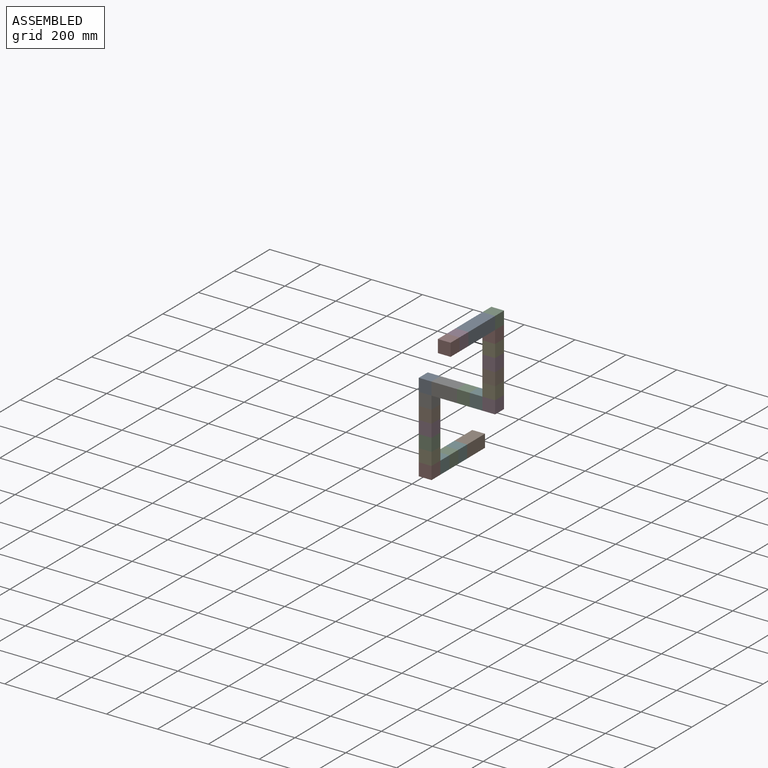
[diagram: assembled view]
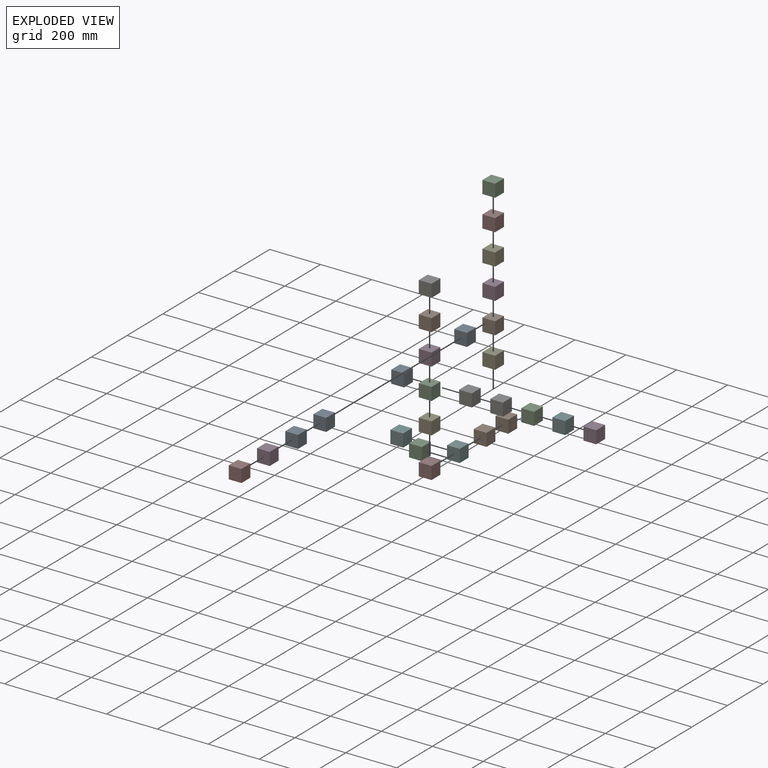
[diagram: exploded view]
GUIDED TOUR — MATED ASSEMBLY (Onshape document 9bb635d8e0742098e5cdf894, AutoMate assembly 9bb635d8e0742098e5cdf894_4bd229e26b546ad1a448d9b1_0f3c6ab229fbf7bb88413557_default)

This assembly has 28 components, labeled P0..P27 below (a component is one placed occurrence of a part; the same part can appear more than once), held together by 26 mates. A mate is a constraint between two components; its type names the relative motion it leaves free:
  FASTENED — locks the two components together rigidly (no relative motion).
Axis/direction vectors are unit vectors and 'through' points are millimeter coordinates, both in the assembly's world frame.

MATES
  1. FASTENED "Fastened 8": P14 <-> P8, direction (-1.000, 0.000, 0.000) through (-148.50, 260.82, 5.08) mm
  2. FASTENED "Fastened 6": P18 <-> P15, direction (0.000, 0.000, -1.000) through (76.50, 260.82, 280.08) mm
  3. FASTENED "Fastened 10": P1 <-> P19, direction (0.000, 0.000, 1.000) through (76.50, 260.82, 130.08) mm
  4. FASTENED "Fastened 1": P22 <-> P25, direction (0.000, 0.000, -1.000) through (-173.50, 260.82, -69.92) mm
  5. FASTENED "Fastened 6": P0 <-> P16, direction (0.000, 1.000, 0.000) through (76.50, 135.82, 305.08) mm
  6. FASTENED "Fastened 10": P24 <-> P16, direction (0.000, -1.000, 0.000) through (76.50, 185.82, 305.08) mm
  7. FASTENED "Fastened 6": P12 <-> P1, direction (0.000, 0.000, 1.000) through (76.50, 260.82, 80.08) mm
  8. FASTENED "Fastened 13": P0 <-> P3, direction (0.000, -1.000, 0.000) through (76.50, 85.82, 305.08) mm
  9. FASTENED "Fastened 13": P20 <-> P15, direction (0.000, 0.000, 1.000) through (76.50, 260.82, 230.08) mm
  10. FASTENED "Fastened 6": P6 <-> P14, direction (-1.000, 0.000, 0.000) through (-98.50, 260.82, 5.08) mm
  11. FASTENED "Fastened 14": P12 <-> P27, direction (0.000, 0.000, -1.000) through (76.50, 260.82, 30.08) mm
  12. FASTENED "Fastened 5": P7 <-> P4, direction (0.000, 0.000, 1.000) through (-173.50, 260.82, -269.92) mm
  13. FASTENED "Fastened 6": P23 <-> P3, direction (0.000, 1.000, 0.000) through (76.50, 35.82, 305.08) mm
  14. FASTENED "Fastened 12": P5 <-> P7, direction (0.000, -1.000, 0.000) through (-173.50, 285.82, -294.92) mm
  15. FASTENED "Fastened 2": P21 <-> P17, direction (0.000, 1.000, 0.000) through (-173.50, 435.82, -294.92) mm
  16. FASTENED "Fastened 6": P26 <-> P13, direction (1.000, 0.000, 0.000) through (1.50, 260.82, 5.08) mm
  17. FASTENED "Fastened 4": P8 <-> P22, direction (0.000, 0.000, -1.000) through (-173.50, 260.82, -19.92) mm
  18. FASTENED "Fastened 11": P17 <-> P9, direction (0.000, 1.000, 0.000) through (-173.50, 485.82, -294.92) mm
  19. FASTENED "Fastened 1": P2 <-> P4, direction (0.000, 0.000, -1.000) through (-173.50, 260.82, -219.92) mm
  20. FASTENED "Fastened 1": P5 <-> P10, direction (0.000, 1.000, 0.000) through (-173.50, 335.82, -294.92) mm
  21. FASTENED "Fastened 2": P11 <-> P2, direction (0.000, 0.000, -1.000) through (-173.50, 260.82, -169.92) mm
  22. FASTENED "Fastened 3": P10 <-> P21, direction (0.000, 1.000, 0.000) through (-173.50, 385.82, -294.92) mm
  23. FASTENED "Fastened 7": P6 <-> P26, direction (1.000, 0.000, 0.000) through (-48.50, 260.82, 5.08) mm
  24. FASTENED "Fastened 3": P25 <-> P11, direction (0.000, 0.000, -1.000) through (-173.50, 260.82, -119.92) mm
  25. FASTENED "Fastened 6": P20 <-> P19, direction (0.000, 0.000, -1.000) through (76.50, 260.82, 180.08) mm
  26. FASTENED "Fastened 9": P13 <-> P27, direction (1.000, 0.000, 0.000) through (51.50, 260.82, 5.08) mm

ASSEMBLY ORDER
  1. P7 — the base component [order verified]
  2. P5 [order verified]
  3. P4 [order verified]
  4. P2 [order verified]
  5. P11 [order verified]
  6. P25 [order verified]
  7. P22 [order verified]
  8. P8 [order verified]
  9. P14 [order verified]
  10. P6 [order verified]
  11. P26 [order verified]
  12. P13 [order verified]
  13. P27 [order verified]
  14. P12 [order verified]
  15. P1 [order verified]
  16. P19 [order verified]
  17. P20 [order verified]
  18. P15 [order verified]
  19. P18 [order verified]
  20. P10 [order verified]
  21. P21 [order verified]
  22. P17 [order verified]
  23. P9 [order verified]
  24. P24 [order verified]
  25. P16 [order verified]
  26. P0 [order verified]
  27. P3 [order verified]
  28. P23 [order verified]
Order-tag legend:
  [order verified] — this step's position reverses a verified removal order: the component was checked to insert without passing through the ones already placed.

Of the 28 components, 28 carry the full construction recipe — the FeatureScript program that regenerates the part's solid from scratch; the rest are supplied as boundary geometry only.
Because this assembly has more than 12 components, the tour below covers the 12 most significant ones individually (every recipe-attached component first, then the largest by part volume), in assembly order; the remaining 16 are summarized together in a grouped section at the end.
Each toured component is shown spotlighted twice — in the assembled view, then in the exploded view, where a leader line traces a displaced component back to its assembled socket (saturated green if recipe-attached, orange if geometry-only; every other component desaturated gray) — followed by its recipe or geometry summary and the mates that hold it.
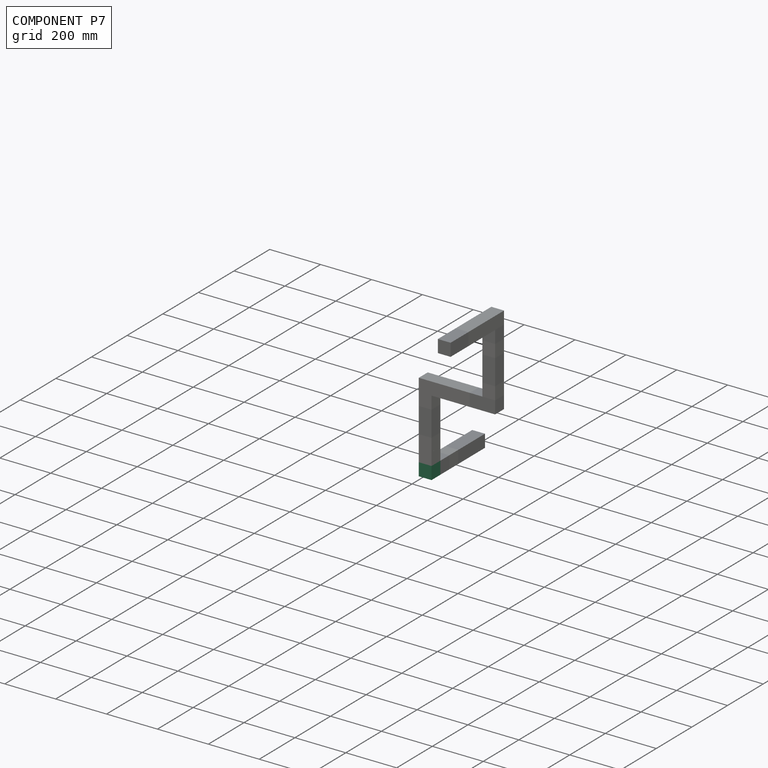
[diagram: component P7 — assembled]
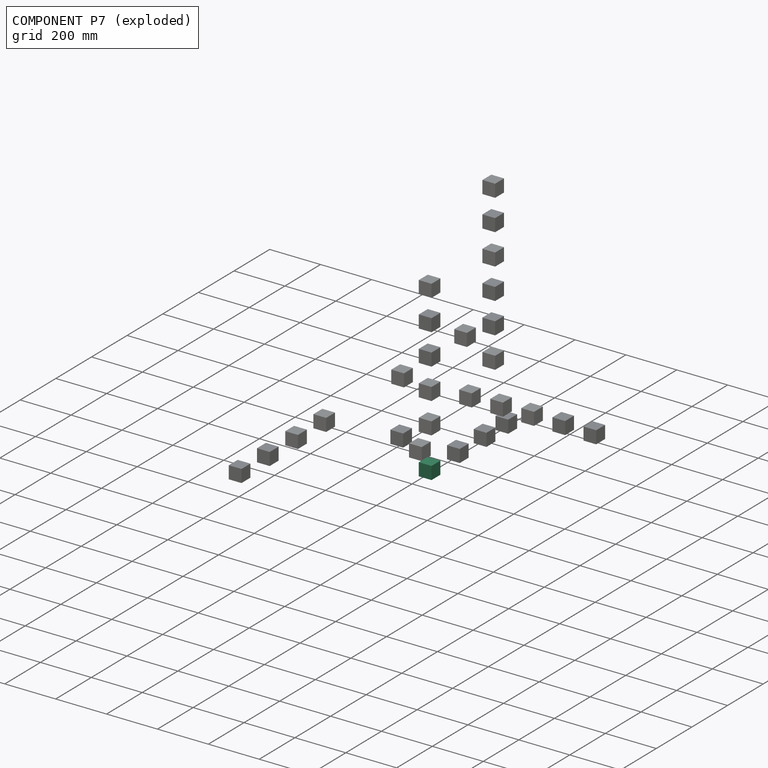
[diagram: component P7 — exploded]
COMPONENT P7 — same part as P0 (CADFS 00232254); its construction recipe is shown at P0.
Held by: FASTENED mate "Fastened 5" to P4; FASTENED mate "Fastened 12" to P5.
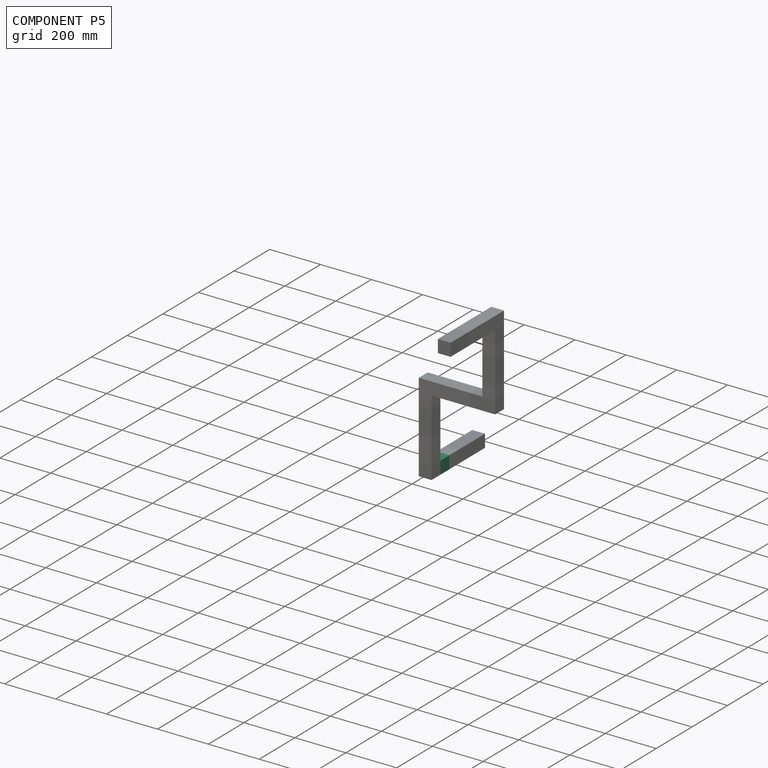
[diagram: component P5 — assembled]
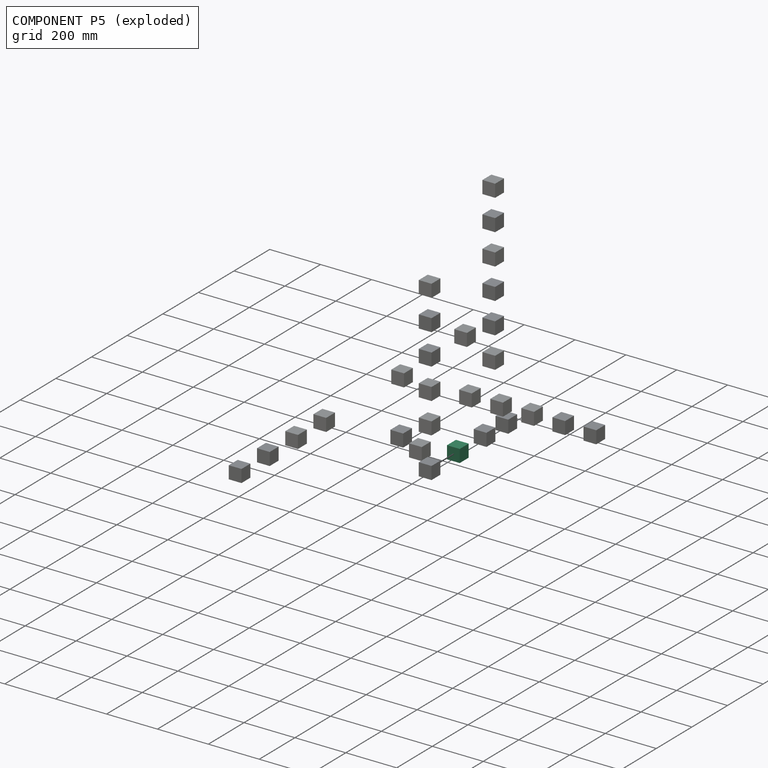
[diagram: component P5 — exploded]
COMPONENT P5 — same part as P0 (CADFS 00232254); its construction recipe is shown at P0.
Held by: FASTENED mate "Fastened 12" to P7; FASTENED mate "Fastened 1" to P10.
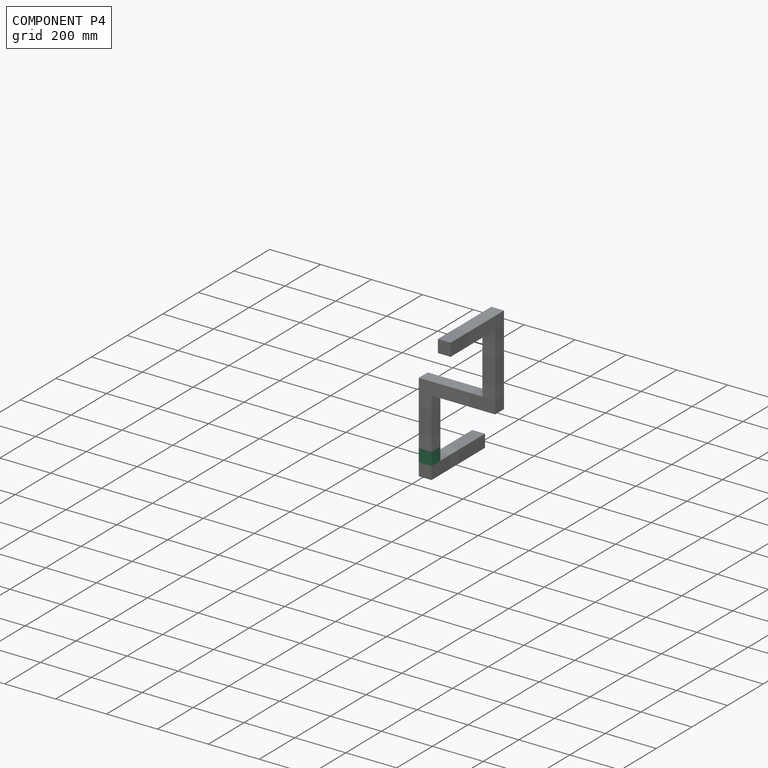
[diagram: component P4 — assembled]
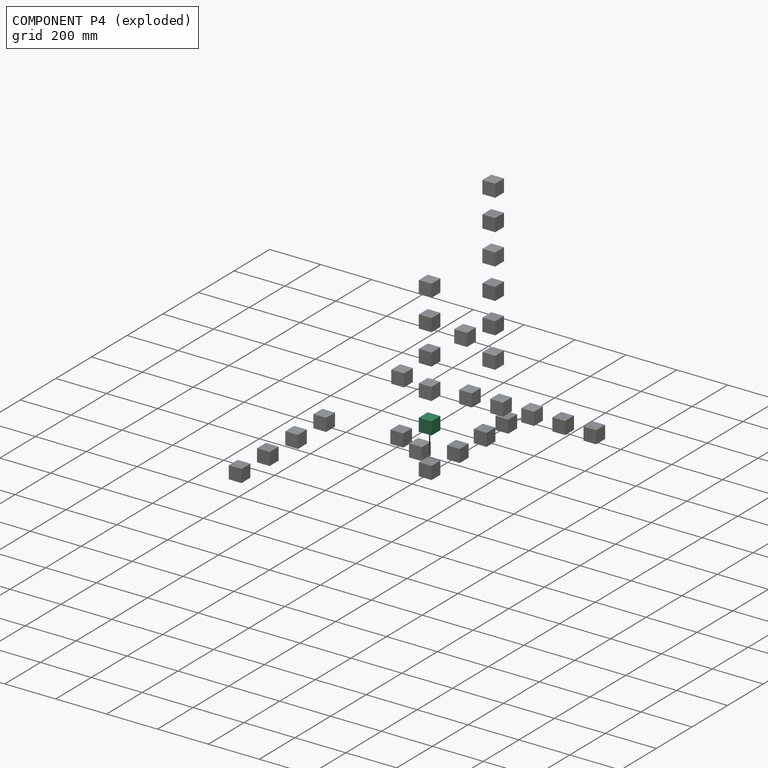
[diagram: component P4 — exploded]
COMPONENT P4 — same part as P0 (CADFS 00232254); its construction recipe is shown at P0.
Held by: FASTENED mate "Fastened 5" to P7; FASTENED mate "Fastened 1" to P2.
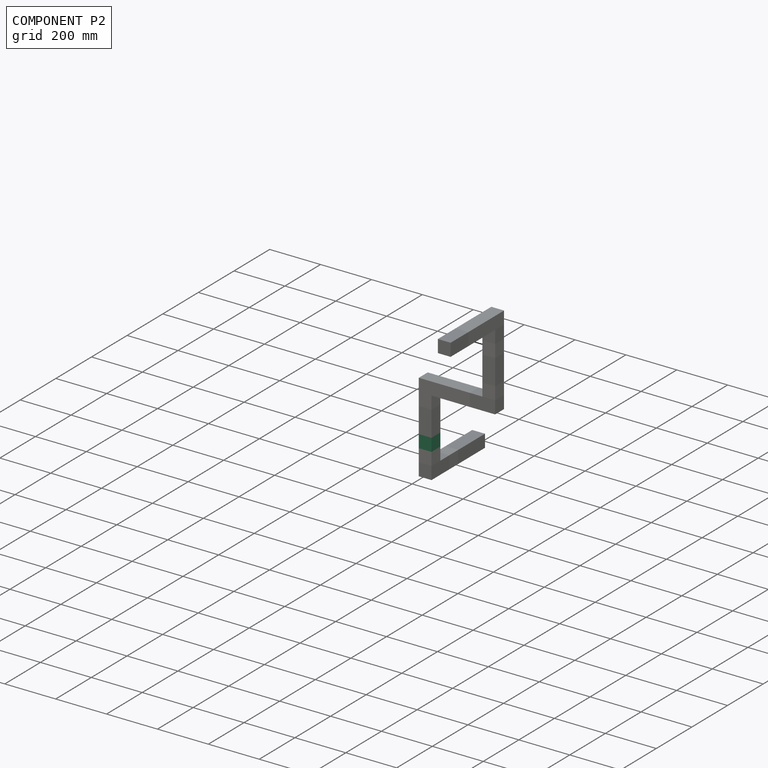
[diagram: component P2 — assembled]
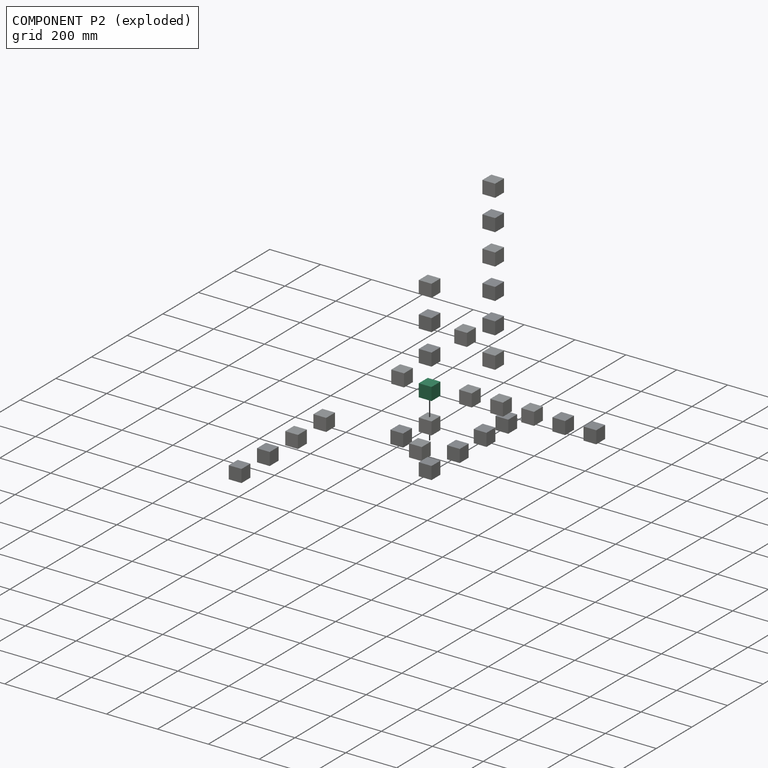
[diagram: component P2 — exploded]
COMPONENT P2 — same part as P0 (CADFS 00232254); its construction recipe is shown at P0.
Held by: FASTENED mate "Fastened 1" to P4; FASTENED mate "Fastened 2" to P11.
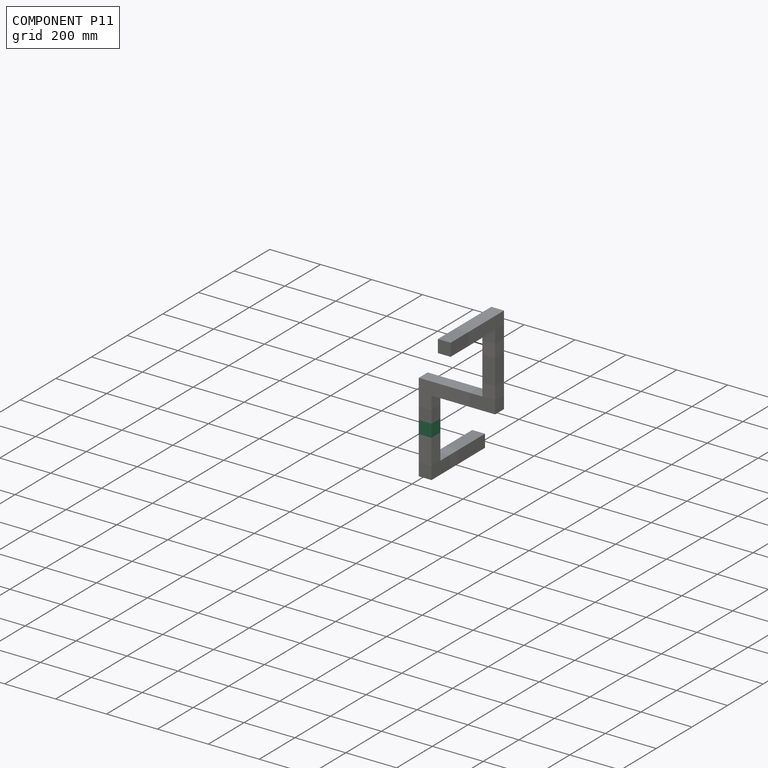
[diagram: component P11 — assembled]
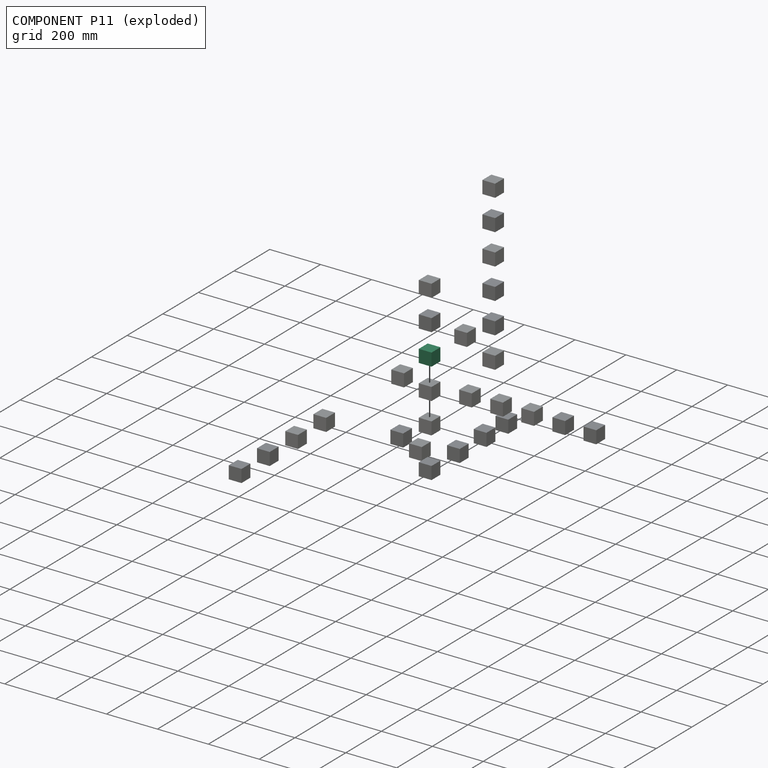
[diagram: component P11 — exploded]
COMPONENT P11 — same part as P0 (CADFS 00232254); its construction recipe is shown at P0.
Held by: FASTENED mate "Fastened 2" to P2; FASTENED mate "Fastened 3" to P25.
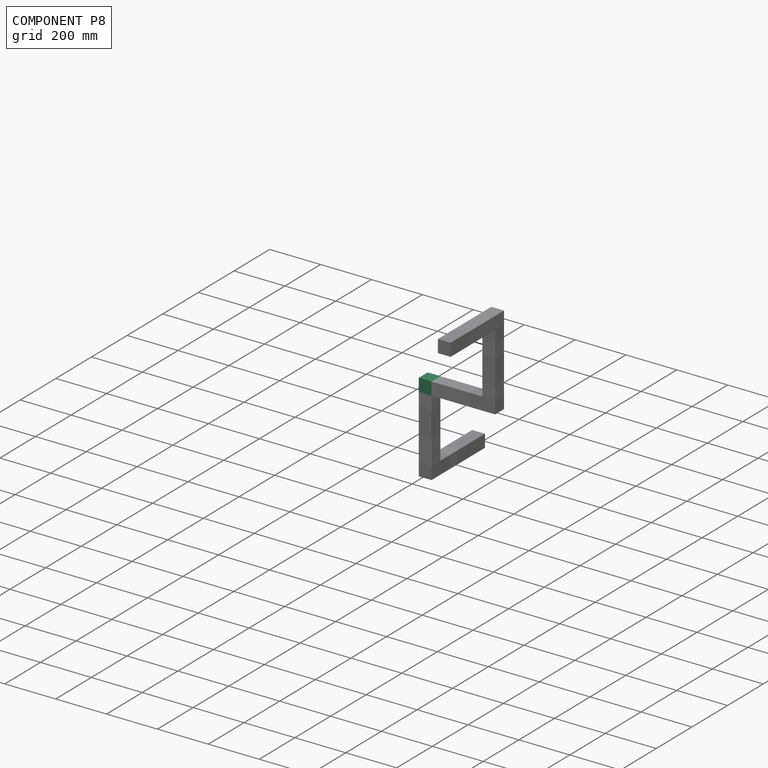
[diagram: component P8 — assembled]
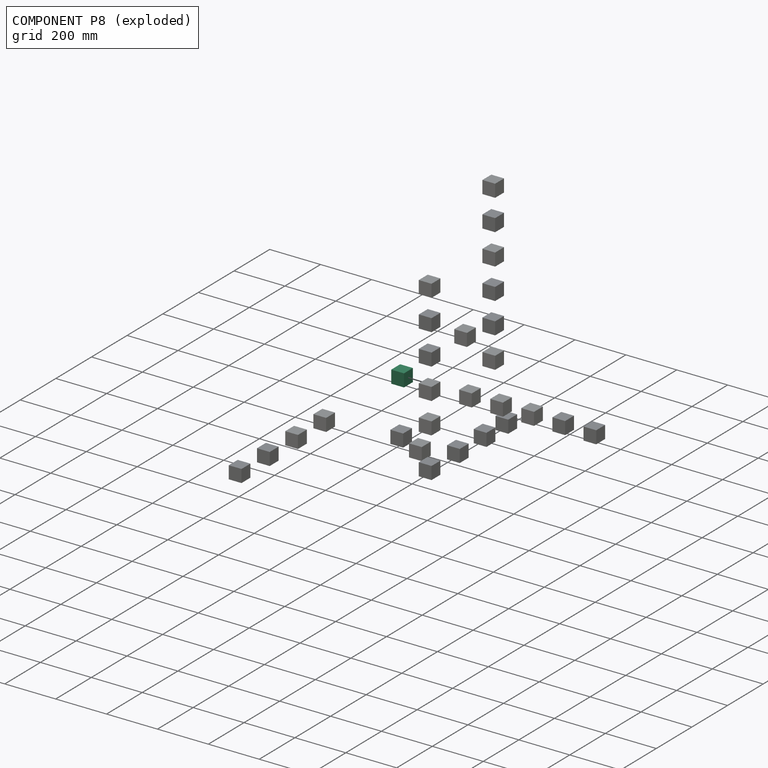
[diagram: component P8 — exploded]
COMPONENT P8 — same part as P0 (CADFS 00232254); its construction recipe is shown at P0.
Held by: FASTENED mate "Fastened 8" to P14; FASTENED mate "Fastened 4" to P22.
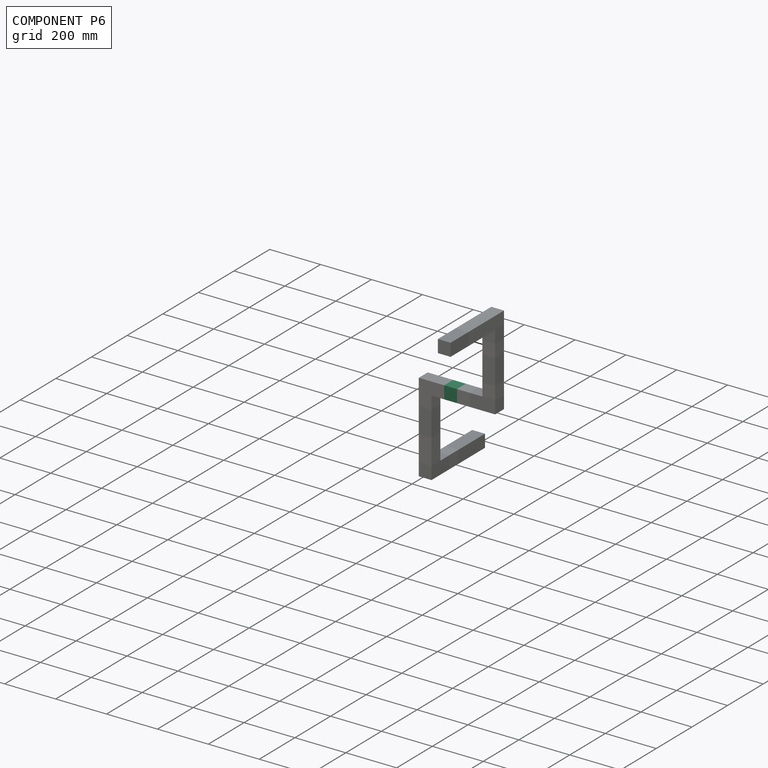
[diagram: component P6 — assembled]
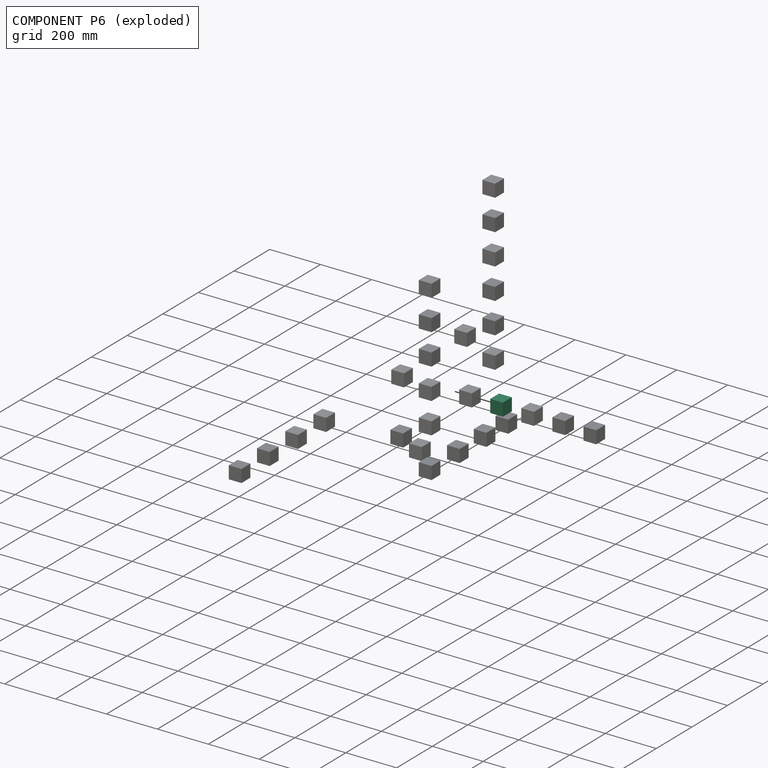
[diagram: component P6 — exploded]
COMPONENT P6 — same part as P0 (CADFS 00232254); its construction recipe is shown at P0.
Held by: FASTENED mate "Fastened 6" to P14; FASTENED mate "Fastened 7" to P26.
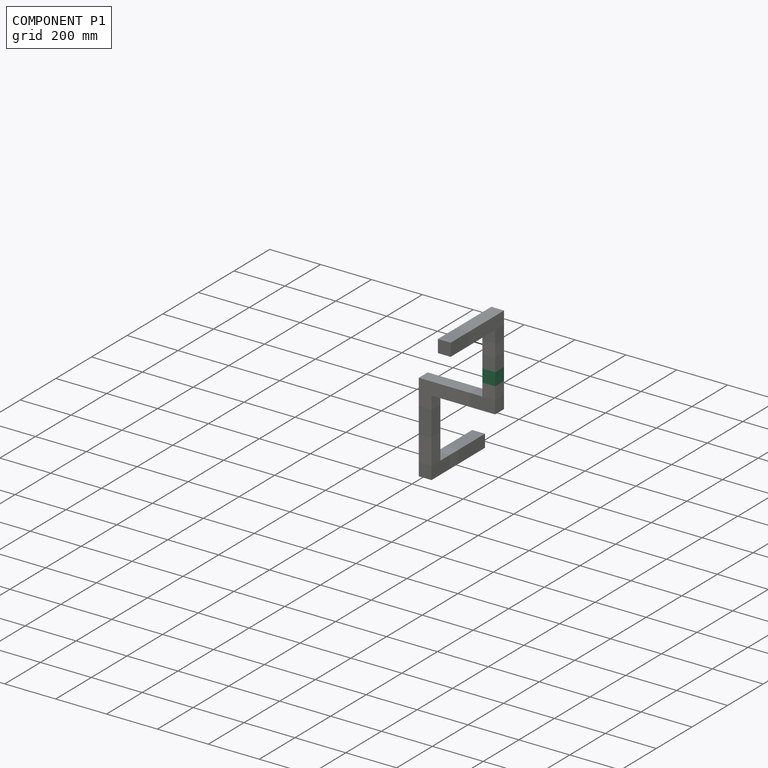
[diagram: component P1 — assembled]
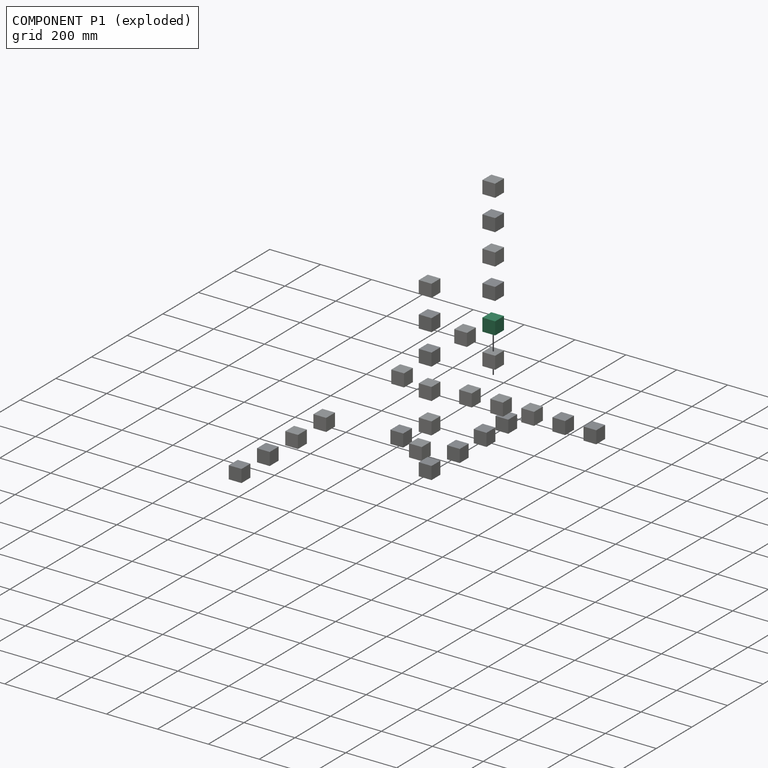
[diagram: component P1 — exploded]
COMPONENT P1 — same part as P0 (CADFS 00232254); its construction recipe is shown at P0.
Held by: FASTENED mate "Fastened 10" to P19; FASTENED mate "Fastened 6" to P12.
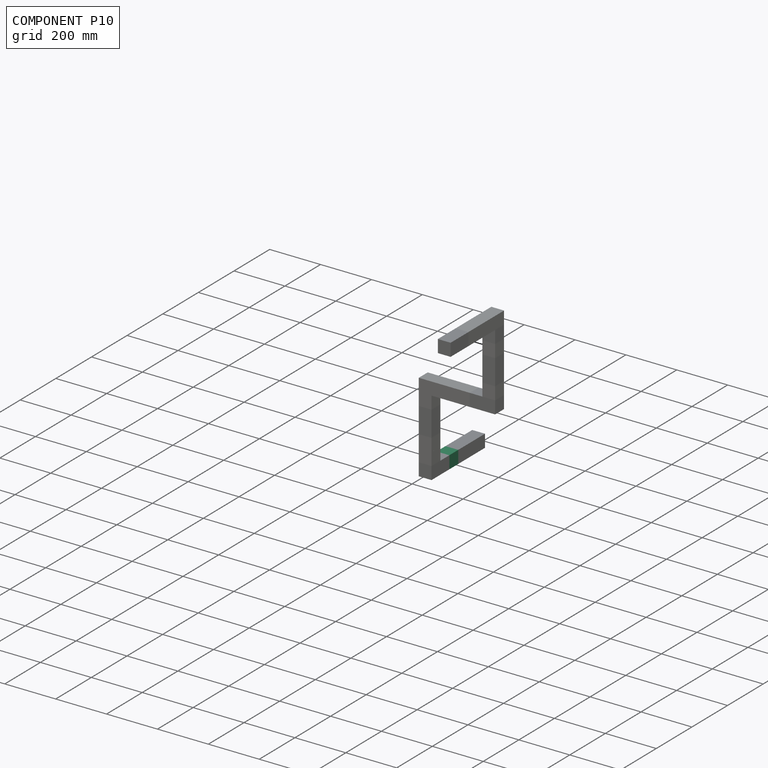
[diagram: component P10 — assembled]
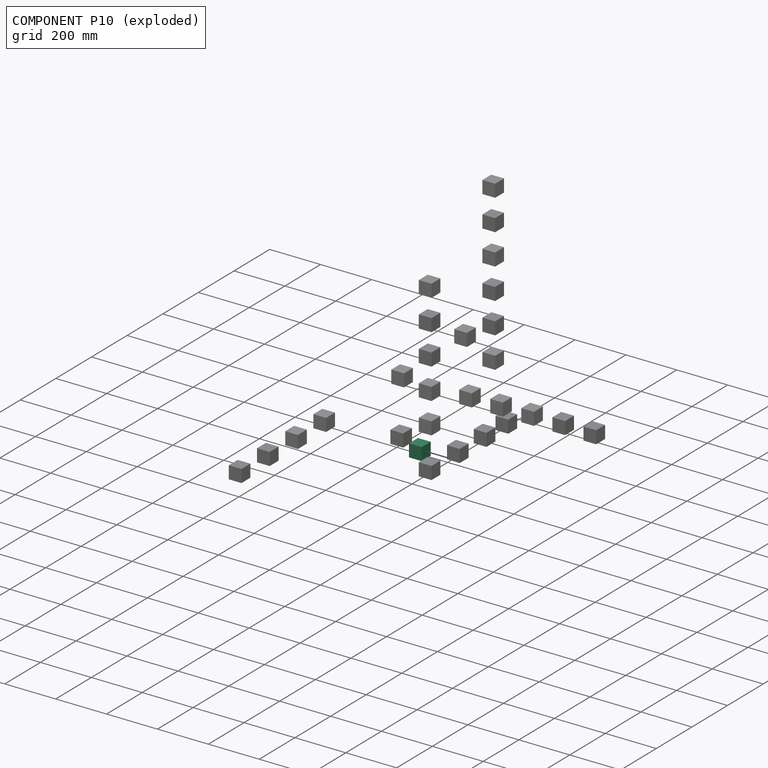
[diagram: component P10 — exploded]
COMPONENT P10 — same part as P0 (CADFS 00232254); its construction recipe is shown at P0.
Held by: FASTENED mate "Fastened 1" to P5; FASTENED mate "Fastened 3" to P21.
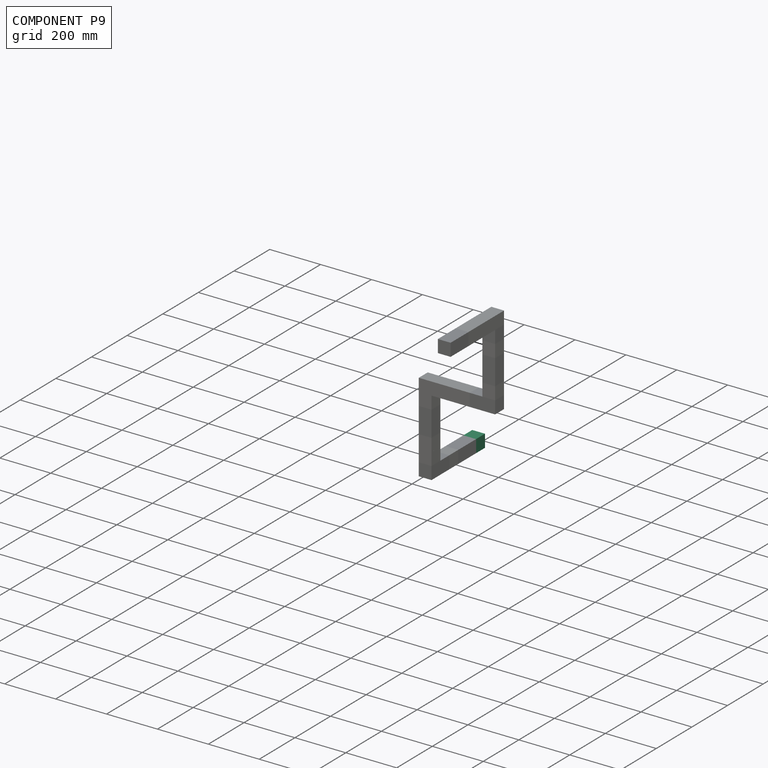
[diagram: component P9 — assembled]
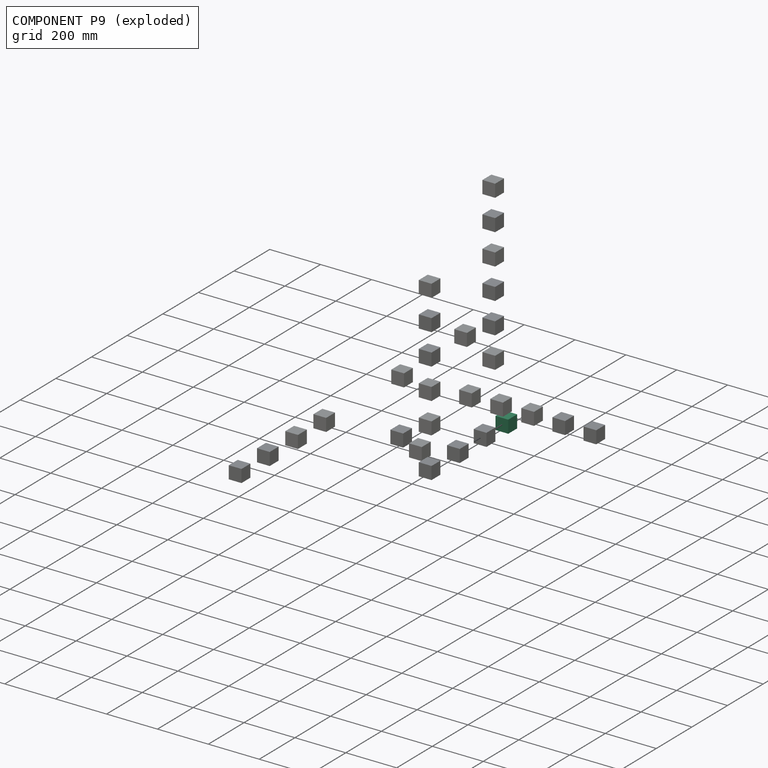
[diagram: component P9 — exploded]
COMPONENT P9 — same part as P0 (CADFS 00232254); its construction recipe is shown at P0.
Held by: FASTENED mate "Fastened 11" to P17.
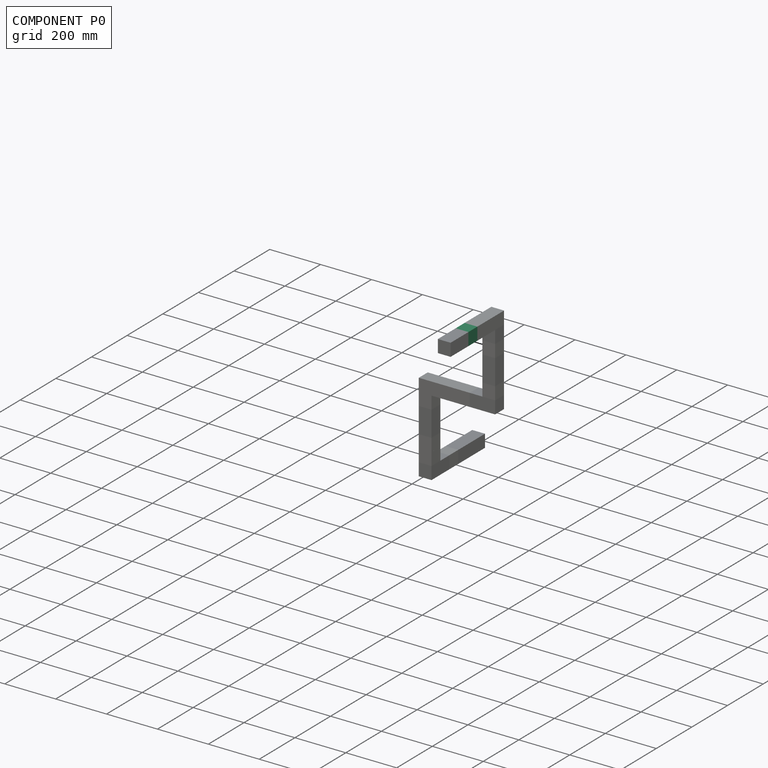
[diagram: component P0 — assembled]
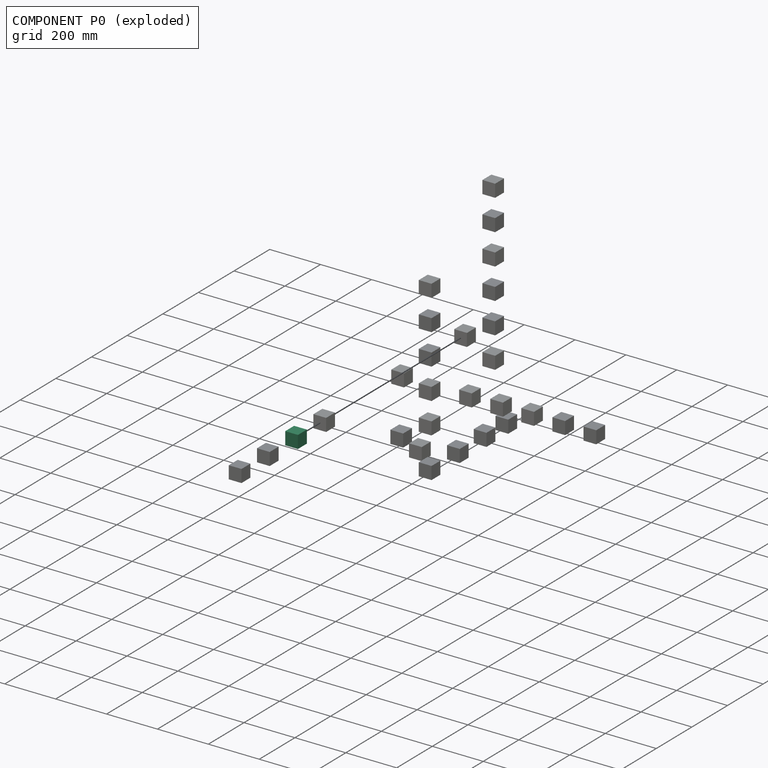
[diagram: component P0 — exploded]
COMPONENT P0 — recipe-attached (CADFS 00232254, mesh-verified: the recipe's output STEP matches this component's geometry to below the mesh-comparison resolution (tessellation chordal tolerance ~0.13 mm)).
Held by: FASTENED mate "Fastened 6" to P16; FASTENED mate "Fastened 13" to P3.
Construction recipe (FeatureScript — the CAD program that rebuilds this solid; sketch coordinates are in the units given by the * unit suffixes, e.g. mm):

FeatureScript 1511;
import(path : "onshape/std/geometry.fs", version : "1511.0");
import(path : "onshape/std/common.fs", version : "1511.0");
const mm = millimeter;
const VERTEX = EntityType.VERTEX;
const EDGE = EntityType.EDGE;
const FACE = EntityType.FACE;
const BODY = EntityType.BODY;
function v(x, y){return vector(x, y);}
function OD(order){return orderDisambiguation(order);}
function OSD(set){return originalSetDisambiguation(set);}
function TD(topology){return topologyDisambiguation(topology);}
function TDD(query){return trueDependencyDisambiguation(query);}
function sQuery(a, b, c) {return sketchEntityQuery(a, b, c);}

annotation { "Feature Type Name" : "Feature", "Feature Type Description" : "" }
export const myFeature = defineFeature(function(context is Context, id is Id, definition is map)
    precondition{}
    {
        {
            var Q0;
            Q0=qCreatedBy(makeId("Top.planeOp"),FACE);
            var sketch = newSketch(context, id + "F0", { "sketchPlane" : qUnion([Q0])});
            skLineSegment(sketch, "E0.bottom", {"start": v(0, 0) * mm, "end": v(50, 0) * mm});
            skLineSegment(sketch, "E0.top", {"start": v(0, 50) * mm, "end": v(50, 50) * mm});
            skLineSegment(sketch, "E0.left", {"start": v(0, 0) * mm, "end": v(0, 50) * mm});
            skLineSegment(sketch, "E0.right", {"start": v(50, 0) * mm, "end": v(50, 50) * mm});
            skSolve(sketch);
        }
        {
            var Q0;
            Q0=makeQuery(id+"F0.imprint","IMPRINT",FACE,{"disambiguationData":[TD([[makeQuery(id+"F0.imprint","IMPRINT",EDGE,{"derivedFrom":sQuery(id+"F0.wireOp",EDGE,"E0.bottom")}),1.0]])]});
            extrude(context, id + "F1", {"entities" : qUnion([Q0]), "depth" : 50 * mm});
        }
    });
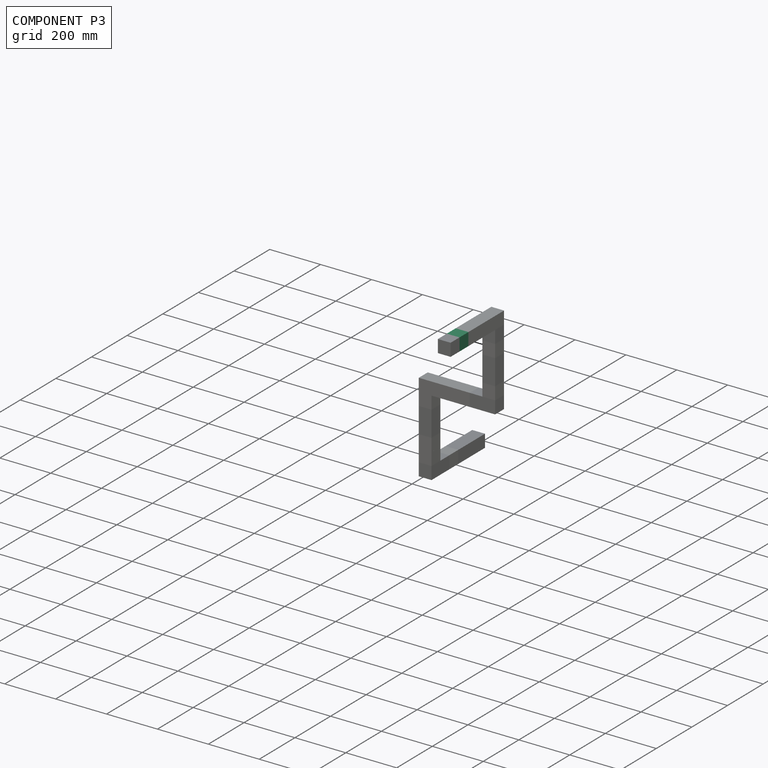
[diagram: component P3 — assembled]
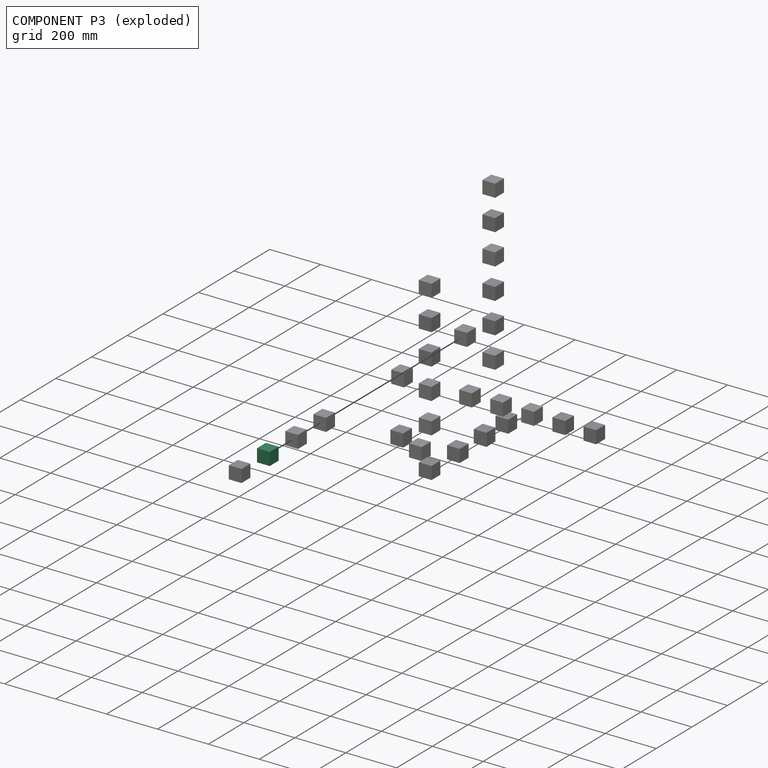
[diagram: component P3 — exploded]
COMPONENT P3 — same part as P0 (CADFS 00232254); its construction recipe is shown at P0.
Held by: FASTENED mate "Fastened 13" to P0; FASTENED mate "Fastened 6" to P23.
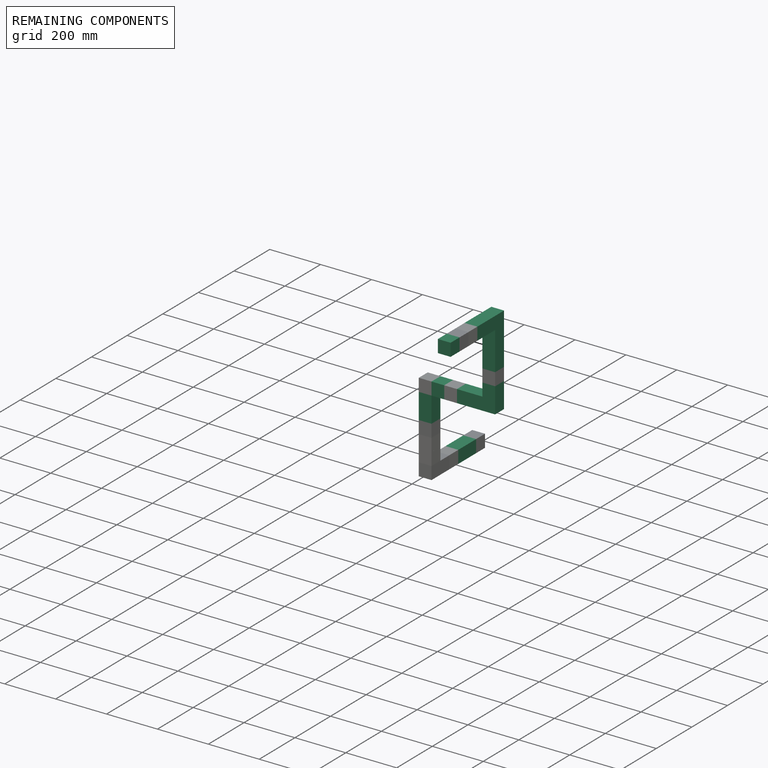
[diagram: remaining components — assembled]
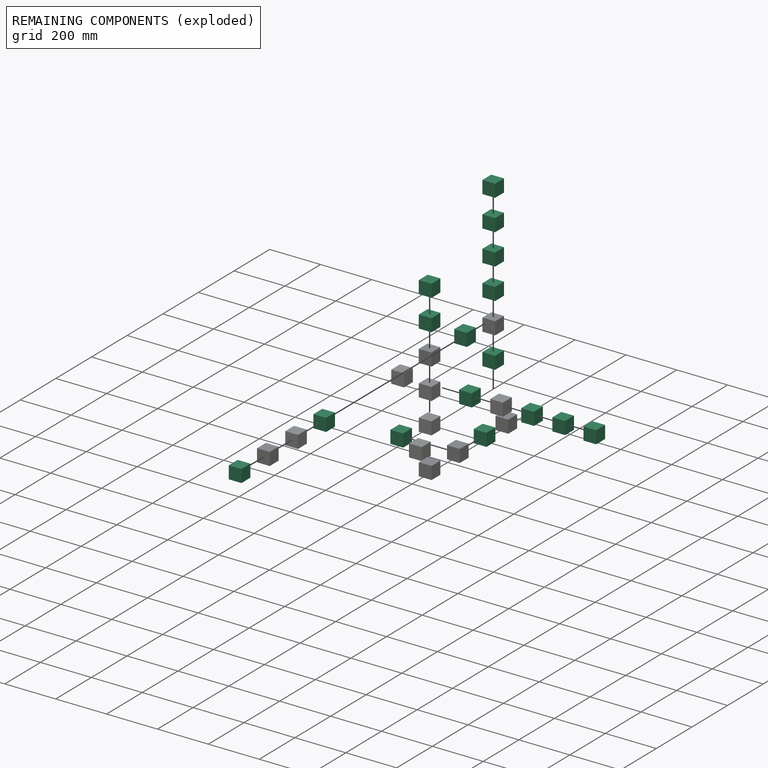
[diagram: remaining components — exploded]
REMAINING COMPONENTS (grouped) — the 16 components below fall outside the per-component tour by the significance rule stated above; both spotlight views highlight the whole group.
  P25: bounding box 50.0 x 50.0 x 50.0 mm, volume 125000 mm^3. Recipe-attached (CADFS 00232254; recipe not printed under the significance rule). Held by: FASTENED mate "Fastened 1" to P22; FASTENED mate "Fastened 3" to P11.
  P22: bounding box 50.0 x 50.0 x 50.0 mm, volume 125000 mm^3. Recipe-attached (CADFS 00232254; recipe not printed under the significance rule). Held by: FASTENED mate "Fastened 1" to P25; FASTENED mate "Fastened 4" to P8.
  P14: bounding box 50.0 x 50.0 x 50.0 mm, volume 125000 mm^3. Recipe-attached (CADFS 00232254; recipe not printed under the significance rule). Held by: FASTENED mate "Fastened 8" to P8; FASTENED mate "Fastened 6" to P6.
  P26: bounding box 50.0 x 50.0 x 50.0 mm, volume 125000 mm^3. Recipe-attached (CADFS 00232254; recipe not printed under the significance rule). Held by: FASTENED mate "Fastened 6" to P13; FASTENED mate "Fastened 7" to P6.
  P13: bounding box 50.0 x 50.0 x 50.0 mm, volume 125000 mm^3. Recipe-attached (CADFS 00232254; recipe not printed under the significance rule). Held by: FASTENED mate "Fastened 6" to P26; FASTENED mate "Fastened 9" to P27.
  P27: bounding box 50.0 x 50.0 x 50.0 mm, volume 125000 mm^3. Recipe-attached (CADFS 00232254; recipe not printed under the significance rule). Held by: FASTENED mate "Fastened 14" to P12; FASTENED mate "Fastened 9" to P13.
  P12: bounding box 50.0 x 50.0 x 50.0 mm, volume 125000 mm^3. Recipe-attached (CADFS 00232254; recipe not printed under the significance rule). Held by: FASTENED mate "Fastened 6" to P1; FASTENED mate "Fastened 14" to P27.
  P19: bounding box 50.0 x 50.0 x 50.0 mm, volume 125000 mm^3. Recipe-attached (CADFS 00232254; recipe not printed under the significance rule). Held by: FASTENED mate "Fastened 10" to P1; FASTENED mate "Fastened 6" to P20.
  P20: bounding box 50.0 x 50.0 x 50.0 mm, volume 125000 mm^3. Recipe-attached (CADFS 00232254; recipe not printed under the significance rule). Held by: FASTENED mate "Fastened 13" to P15; FASTENED mate "Fastened 6" to P19.
  P15: bounding box 50.0 x 50.0 x 50.0 mm, volume 125000 mm^3. Recipe-attached (CADFS 00232254; recipe not printed under the significance rule). Held by: FASTENED mate "Fastened 6" to P18; FASTENED mate "Fastened 13" to P20.
  P18: bounding box 50.0 x 50.0 x 50.0 mm, volume 125000 mm^3. Recipe-attached (CADFS 00232254; recipe not printed under the significance rule). Held by: FASTENED mate "Fastened 6" to P15.
  P21: bounding box 50.0 x 50.0 x 50.0 mm, volume 125000 mm^3. Recipe-attached (CADFS 00232254; recipe not printed under the significance rule). Held by: FASTENED mate "Fastened 2" to P17; FASTENED mate "Fastened 3" to P10.
  P17: bounding box 50.0 x 50.0 x 50.0 mm, volume 125000 mm^3. Recipe-attached (CADFS 00232254; recipe not printed under the significance rule). Held by: FASTENED mate "Fastened 2" to P21; FASTENED mate "Fastened 11" to P9.
  P24: bounding box 50.0 x 50.0 x 50.0 mm, volume 125000 mm^3. Recipe-attached (CADFS 00232254; recipe not printed under the significance rule). Held by: FASTENED mate "Fastened 10" to P16.
  P16: bounding box 50.0 x 50.0 x 50.0 mm, volume 125000 mm^3. Recipe-attached (CADFS 00232254; recipe not printed under the significance rule). Held by: FASTENED mate "Fastened 6" to P0; FASTENED mate "Fastened 10" to P24.
  P23: bounding box 50.0 x 50.0 x 50.0 mm, volume 125000 mm^3. Recipe-attached (CADFS 00232254; recipe not printed under the significance rule). Held by: FASTENED mate "Fastened 6" to P3.
PROVENANCE & LICENSES
Assembly (occurrences, transforms, mates, per-part STEP geometry): AutoMate dataset, Zenodo record 7776208, CC0.
Construction recipes: CADFS (HuggingFace VladPyatov/CADFS, CC-BY-4.0, layered over the ABC dataset), FeatureScript reconstruction programs keyed by ABC model id.
Join: ABC meta listings map ABC model id -> Onshape documentId; within a shared document, parts are matched by geometric signature (bounding-box dims + volume at 0.1% relative tolerance, exact B-rep face/solid counts).
Verification: 28 of this assembly's 28 components carry a recipe attachment, and every attachment is mesh-verified: the CADFS STEP and the AutoMate member STEP were compared as meshes in their shared local frame (symmetric sampled-point-to-mesh distance); worst across the 28 attachments: below the mesh-comparison resolution (tessellation chordal tolerance ~0.13 mm) on a 87 mm part.
Renders: orthographic iso camera (az 35 / el 25); the floor grid conveys scale (grid pitch printed in each image; no ruler). In the exploded view each component is displaced by its stored offset vector: the offsets alone carry the explosion direction (mate normal/axis signs are not orientation cues and do not encode it), and separation distances are assigned per mate-chain, not proportionally to assembly-order depth.
